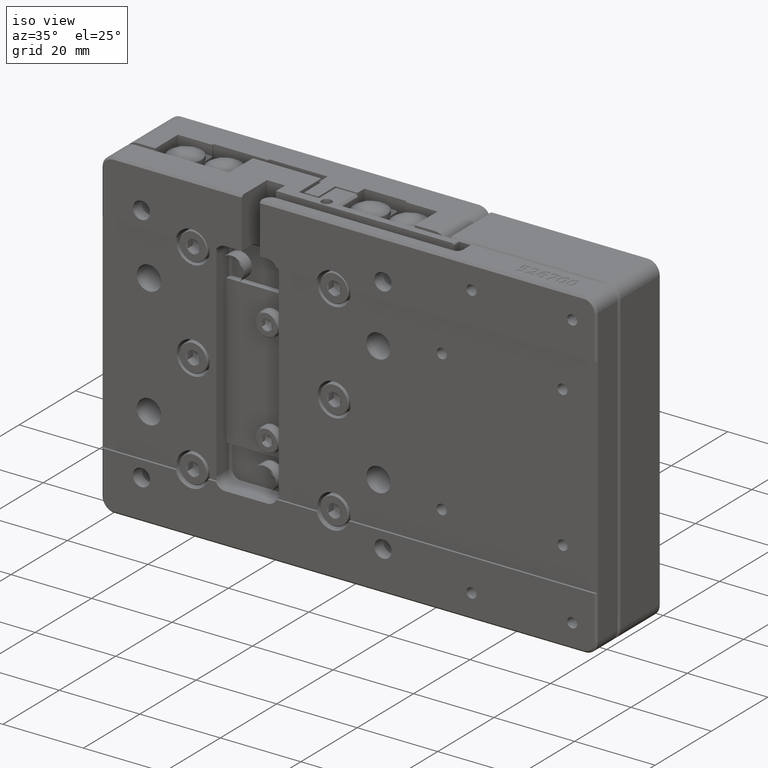
[diagram: clean part render]
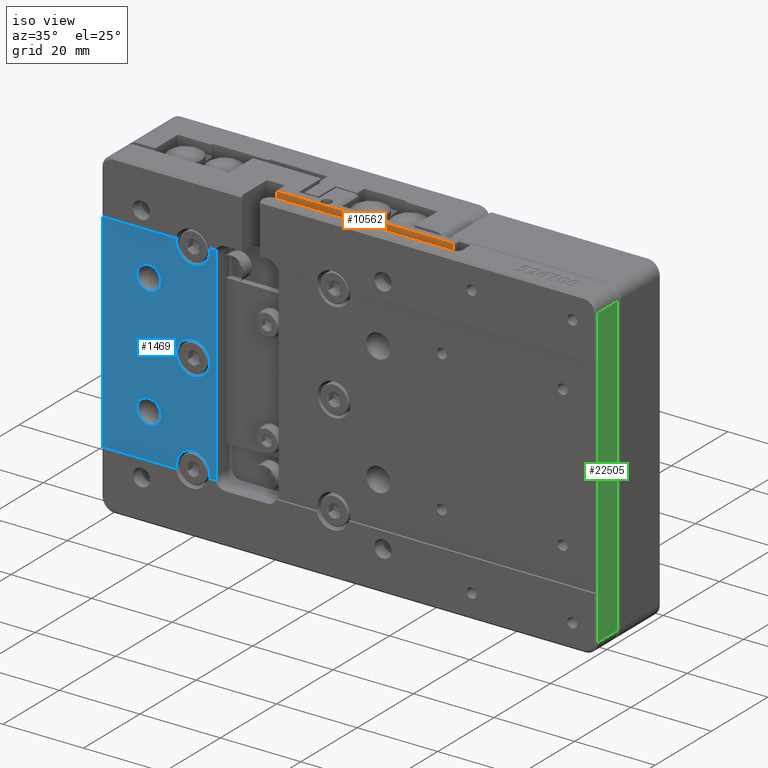
[diagram: same view with three faces highlighted in distinct colors, each labeled with its STEP entity id]
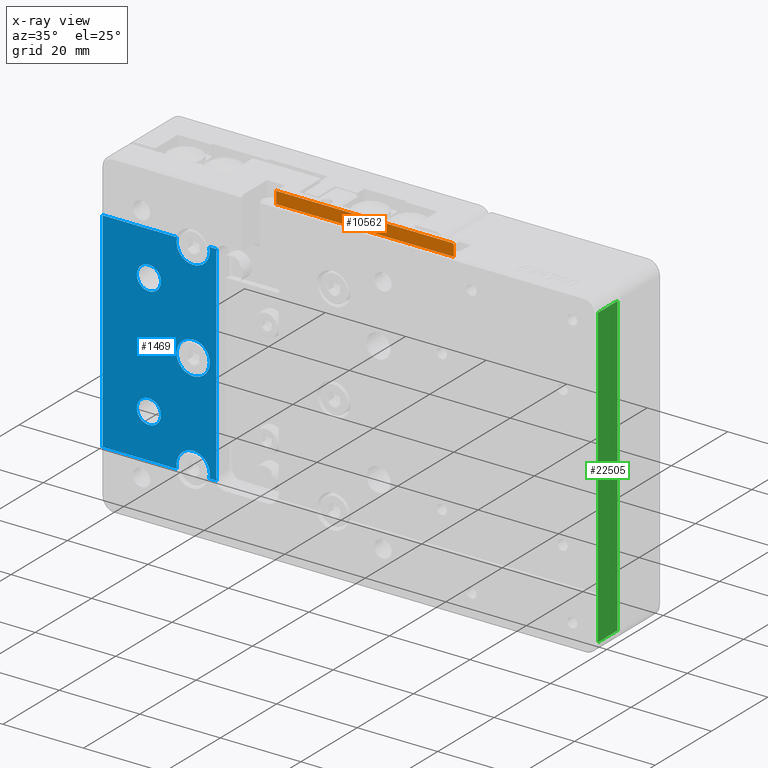
[diagram: x-ray of the same camera — body ghosted, the three highlighted faces saturated]
A machine part, iso view with three faces highlighted in distinct colors.
The next image is the same camera in x-ray (body ghosted, the three faces saturated) — at least one of them is partly hidden behind the body in this view.
Their STEP definitions:

[orange] entity #10562 — the highlighted planar face has unit normal (0, 1, -0).
#217 = LINE ( 'NONE', #63088, #12121 ) ;
#1885 = DIRECTION ( 'NONE',  ( 0.0000000000000000000, 0.0000000000000000000, -1.000000000000000000 ) ) ;
#2148 = CARTESIAN_POINT ( 'NONE',  ( 43.54999999999999700, -2.200000000000000600, 39.63089969389957200 ) ) ;
#2619 = ORIENTED_EDGE ( 'NONE', *, *, #38401, .T. ) ;
#2652 = DIRECTION ( 'NONE',  ( 1.000000000000000000, 0.0000000000000000000, -0.0000000000000000000 ) ) ;
#3568 = ORIENTED_EDGE ( 'NONE', *, *, #4617, .F. ) ;
#4617 = EDGE_CURVE ( 'NONE', #32132, #61576, #7474, .T. ) ;
#4696 = DIRECTION ( 'NONE',  ( -1.000000000000000000, 0.0000000000000000000, -0.0000000000000000000 ) ) ;
#4829 = CARTESIAN_POINT ( 'NONE',  ( 44.43300000000000700, -2.200000000000000200, 36.82281678783001400 ) ) ;
#7474 = LINE ( 'NONE', #60019, #20862 ) ;
#7734 = VERTEX_POINT ( 'NONE', #23912 ) ;
#8544 = CARTESIAN_POINT ( 'NONE',  ( 43.55000000000000400, -2.200000000000000200, 37.00000000000000000 ) ) ;
#9924 = DIRECTION ( 'NONE',  ( 0.0000000000000000000, 0.0000000000000000000, 1.000000000000000000 ) ) ;
#10312 = CARTESIAN_POINT ( 'NONE',  ( 43.05000000000000400, -2.200000000000000600, 40.00000000000000000 ) ) ;
#10562 = ADVANCED_FACE ( 'NONE', ( #58662 ), #65218, .F. ) ;
#12121 = VECTOR ( 'NONE', #2652, 1000.000000000000000 ) ;
#18306 = CARTESIAN_POINT ( 'NONE',  ( -0.6000000000000010900, -2.200000000000000600, 37.00000000000000000 ) ) ;
#20862 = VECTOR ( 'NONE', #4696, 1000.000000000000000 ) ;
#22242 = CARTESIAN_POINT ( 'NONE',  ( 43.18089969389957600, -2.200000000000000600, 39.99999999999998600 ) ) ;
#23698 = VERTEX_POINT ( 'NONE', #10312 ) ;
#23912 = CARTESIAN_POINT ( 'NONE',  ( 43.55000000000000400, -2.200000000000000600, 39.50000000000000000 ) ) ;
#27639 = VECTOR ( 'NONE', #63892, 1000.000000000000000 ) ;
#27876 = B_SPLINE_CURVE_WITH_KNOTS ( 'NONE', 3,
 ( #37238, #22242, #62583, #32351, #2148, #37451 ),
 .UNSPECIFIED., .F., .F.,
 ( 4, 2, 4 ),
 ( 0.0000000000000000000, 0.5000000000000000000, 1.000000000000000000 ),
 .UNSPECIFIED. ) ;
#32013 = VECTOR ( 'NONE', #1885, 1000.000000000000000 ) ;
#32132 = VERTEX_POINT ( 'NONE', #8544 ) ;
#32219 = AXIS2_PLACEMENT_3D ( 'NONE', #4829, #40091, #9924 ) ;
#32351 = CARTESIAN_POINT ( 'NONE',  ( 43.49611345180489500, -2.200000000000000600, 39.76099332938163400 ) ) ;
#33723 = CARTESIAN_POINT ( 'NONE',  ( -0.6000000000000022000, -2.200000000000000600, 40.00000000000000000 ) ) ;
#37238 = CARTESIAN_POINT ( 'NONE',  ( 43.05000000000000400, -2.200000000000000600, 40.00000000000000000 ) ) ;
#37451 = CARTESIAN_POINT ( 'NONE',  ( 43.55000000000000400, -2.200000000000000600, 39.50000000000000000 ) ) ;
#38310 = ORIENTED_EDGE ( 'NONE', *, *, #56716, .F. ) ;
#38401 = EDGE_CURVE ( 'NONE', #53543, #61576, #58846, .T. ) ;
#40091 = DIRECTION ( 'NONE',  ( 0.0000000000000000000, 1.000000000000000000, -0.0000000000000000000 ) ) ;
#41019 = LINE ( 'NONE', #48649, #27639 ) ;
#44303 = EDGE_CURVE ( 'NONE', #32132, #7734, #41019, .T. ) ;
#48649 = CARTESIAN_POINT ( 'NONE',  ( 43.54999999999999700, -2.200000000000000200, 34.82281678783000000 ) ) ;
#52145 = CARTESIAN_POINT ( 'NONE',  ( -0.6000000000000000900, -2.200000000000000600, 40.39000000000000800 ) ) ;
#53543 = VERTEX_POINT ( 'NONE', #33723 ) ;
#56238 = EDGE_CURVE ( 'NONE', #53543, #23698, #217, .T. ) ;
#56716 = EDGE_CURVE ( 'NONE', #23698, #7734, #27876, .T. ) ;
#58662 = FACE_OUTER_BOUND ( 'NONE', #59318, .T. ) ;
#58846 = LINE ( 'NONE', #52145, #32013 ) ;
#59318 = EDGE_LOOP ( 'NONE', ( #63086, #38310, #62709, #2619, #3568 ) ) ;
#60019 = CARTESIAN_POINT ( 'NONE',  ( 44.43300000000000700, -2.200000000000000200, 37.00000000000000000 ) ) ;
#61576 = VERTEX_POINT ( 'NONE', #18306 ) ;
#62583 = CARTESIAN_POINT ( 'NONE',  ( 43.31099332938165200, -2.200000000000001100, 39.94611345180491200 ) ) ;
#62709 = ORIENTED_EDGE ( 'NONE', *, *, #56238, .F. ) ;
#63086 = ORIENTED_EDGE ( 'NONE', *, *, #44303, .T. ) ;
#63088 = CARTESIAN_POINT ( 'NONE',  ( -39.34000000000000300, -2.200000000000000600, 40.00000000000000000 ) ) ;
#63892 = DIRECTION ( 'NONE',  ( 0.0000000000000000000, 0.0000000000000000000, 1.000000000000000000 ) ) ;
#65218 = PLANE ( 'NONE',  #32219 ) ;

[blue] entity #1469 — the highlighted planar face has unit normal (0, -1, 0).
#156 = VERTEX_POINT ( 'NONE', #29533 ) ;
#357 = VERTEX_POINT ( 'NONE', #21842 ) ;
#375 = CARTESIAN_POINT ( 'NONE',  ( -20.03556603869647600, -7.499999999999999100, -21.70183406767461800 ) ) ;
#418 = CARTESIAN_POINT ( 'NONE',  ( -26.65977780455867600, -7.500000000000000900, -12.59768389567649300 ) ) ;
#509 = CARTESIAN_POINT ( 'NONE',  ( -25.49999999999999600, -7.500000000000000000, 15.00000000000000000 ) ) ;
#536 = VECTOR ( 'NONE', #57372, 1000.000000000000000 ) ;
#610 = CARTESIAN_POINT ( 'NONE',  ( -13.37500000000000500, -7.500000000000000000, -24.99999999999998600 ) ) ;
#1007 = CARTESIAN_POINT ( 'NONE',  ( -13.37500000000000900, -7.500000000000000000, 25.00000000000000000 ) ) ;
#1093 = ORIENTED_EDGE ( 'NONE', *, *, #22315, .T. ) ;
#1118 = CARTESIAN_POINT ( 'NONE',  ( -25.49999999999999600, -7.500000000000000000, 15.00000000000000000 ) ) ;
#1129 = CARTESIAN_POINT ( 'NONE',  ( -21.62500000000000700, -7.500000000000000000, -25.00000000000000000 ) ) ;
#1469 = ADVANCED_FACE ( 'NONE', ( #51810, #65234, #13213, #39995 ), #59211, .T. ) ;
#1572 = CARTESIAN_POINT ( 'NONE',  ( -21.10457902883716100, -7.500000000000000900, 22.92326578997508300 ) ) ;
#1680 = VERTEX_POINT ( 'NONE', #25689 ) ;
#1937 = CARTESIAN_POINT ( 'NONE',  ( -28.49999999999999600, -7.500000000000000000, -11.99999999999999600 ) ) ;
#2062 = CARTESIAN_POINT ( 'NONE',  ( -18.58040410698862400, -7.500000000000000000, 4.017427114379594300 ) ) ;
#2580 = VERTEX_POINT ( 'NONE', #55287 ) ;
#2986 = CARTESIAN_POINT ( 'NONE',  ( -13.48257288561611700, -7.499999999999998200, -23.91959589302766200 ) ) ;
#3395 = CARTESIAN_POINT ( 'NONE',  ( -31.11939766255644100, -7.500000000000000900, -16.51540314972749400 ) ) ;
#3521 = EDGE_CURVE ( 'NONE', #36397, #64099, #16223, .T. ) ;
#3853 = CARTESIAN_POINT ( 'NONE',  ( -20.79816593232541100, -7.500000000000000000, -2.535566038696432000 ) ) ;
#3989 = CARTESIAN_POINT ( 'NONE',  ( -42.46000000000001500, -7.500000000000000000, 25.99999999999969800 ) ) ;
#4234 = CARTESIAN_POINT ( 'NONE',  ( -31.50000000000000000, -7.500000000000000000, -14.60236470912816600 ) ) ;
#4466 = CARTESIAN_POINT ( 'NONE',  ( -30.90231610432825000, -7.500000000000000900, -13.15977780456341200 ) ) ;
#4591 = CARTESIAN_POINT ( 'NONE',  ( -28.49999999999999600, -7.500000000000000000, -18.00000000000000700 ) ) ;
#4927 = CARTESIAN_POINT ( 'NONE',  ( -13.37500000000000900, -7.500000000000000000, -1.262917011620707000E-016 ) ) ;
#5039 = EDGE_CURVE ( 'NONE', #25792, #53730, #34417, .T. ) ;
#5337 = EDGE_CURVE ( 'NONE', #53124, #25442, #49567, .T. ) ;
#5480 = CARTESIAN_POINT ( 'NONE',  ( -18.58040410698712500, -7.500000000000000000, -20.98257288562080100 ) ) ;
#5526 = CARTESIAN_POINT ( 'NONE',  ( -25.88060233744355500, -7.500000000000000900, -13.48459685027560100 ) ) ;
#5737 = CARTESIAN_POINT ( 'NONE',  ( -31.50000000000000700, -7.500000000000004400, 15.39763529087438700 ) ) ;
#5967 = ORIENTED_EDGE ( 'NONE', *, *, #7853, .T. ) ;
#6025 = ORIENTED_EDGE ( 'NONE', *, *, #51915, .T. ) ;
#6230 = CARTESIAN_POINT ( 'NONE',  ( -25.50000000000000000, -7.500000000000000000, 14.60236470912200700 ) ) ;
#6391 = CARTESIAN_POINT ( 'NONE',  ( -13.89528897402241000, -7.500000000000000000, -2.076788885019245100 ) ) ;
#6534 = CARTESIAN_POINT ( 'NONE',  ( -13.37500000000000900, -7.500000000000000000, 25.00000000000000000 ) ) ;
#6695 = CARTESIAN_POINT ( 'NONE',  ( -21.62500000000001100, -7.500000000000000900, 24.45967693350028700 ) ) ;
#7101 = CARTESIAN_POINT ( 'NONE',  ( -28.49999999999999600, -7.500000000000000000, 11.99999999999999600 ) ) ;
#7171 = CARTESIAN_POINT ( 'NONE',  ( -17.50000000000000400, -7.500000000000000000, 4.124999999999996400 ) ) ;
#7616 = CARTESIAN_POINT ( 'NONE',  ( -31.50000000000000000, -7.500000000000000000, 15.00000000000000000 ) ) ;
#7693 = CARTESIAN_POINT ( 'NONE',  ( -25.49999999999999600, -7.500000000000000000, -15.00000000000000000 ) ) ;
#7839 = ORIENTED_EDGE ( 'NONE', *, *, #35696, .T. ) ;
#7853 = EDGE_CURVE ( 'NONE', #46680, #63582, #56190, .T. ) ;
#7969 = EDGE_CURVE ( 'NONE', #41758, #44536, #51554, .T. ) ;
#8094 = CARTESIAN_POINT ( 'NONE',  ( -13.37500000000000500, -7.500000000000000000, -24.99999999999998600 ) ) ;
#8498 = CARTESIAN_POINT ( 'NONE',  ( -31.50000000000000000, -7.500000000000000900, -15.39801401209795500 ) ) ;
#8833 = ORIENTED_EDGE ( 'NONE', *, *, #7969, .T. ) ;
#8939 = CARTESIAN_POINT ( 'NONE',  ( -21.51742711438096100, -7.499999999999999100, -1.080404106987072200 ) ) ;
#9155 = VERTEX_POINT ( 'NONE', #11741 ) ;
#9458 = CARTESIAN_POINT ( 'NONE',  ( -25.49999999999999600, -7.500000000000000000, -15.39763529088054900 ) ) ;
#9546 = CARTESIAN_POINT ( 'NONE',  ( -30.01540314973113200, -7.500000000000000900, -12.38060233744357700 ) ) ;
#9571 = VERTEX_POINT ( 'NONE', #33283 ) ;
#9618 = VERTEX_POINT ( 'NONE', #13244 ) ;
#9986 = EDGE_LOOP ( 'NONE', ( #63519, #56316, #10913, #17904, #47351, #10392, #38264, #35625, #18395, #7839, #8833, #49054, #6025, #1093, #24755, #15613 ) ) ;
#10357 = CARTESIAN_POINT ( 'NONE',  ( -21.62500000000000700, -7.500000000000000000, -25.00000000000000000 ) ) ;
#10370 = CARTESIAN_POINT ( 'NONE',  ( -13.37499999999999800, -7.500000000000000000, -25.33838021691178400 ) ) ;
#10392 = ORIENTED_EDGE ( 'NONE', *, *, #50516, .T. ) ;
#10481 = CARTESIAN_POINT ( 'NONE',  ( -28.49999999999999600, -7.500000000000000000, 18.00000000000000400 ) ) ;
#10580 = CARTESIAN_POINT ( 'NONE',  ( -17.50000000000000000, -7.500000000000000000, -20.87500000000000400 ) ) ;
#10620 = CARTESIAN_POINT ( 'NONE',  ( -25.50000000000000000, -7.500000000000000900, -14.60198598789894900 ) ) ;
#10661 = B_SPLINE_CURVE_WITH_KNOTS ( 'NONE', 3,
 ( #6534, #41786, #46853, #16713, #51904, #21776, #56989, #26826, #62098, #31855 ),
 .UNSPECIFIED., .F., .F.,
 ( 4, 2, 2, 2, 4 ),
 ( 0.0000000000000000000, 0.2499999999999998300, 0.4999999999999996700, 0.7499999999999995600, 1.000000000000000000 ),
 .UNSPECIFIED. ) ;
#10835 = CARTESIAN_POINT ( 'NONE',  ( -31.11960396959440100, -7.499999999999999100, 16.51528354497993300 ) ) ;
#10913 = ORIENTED_EDGE ( 'NONE', *, *, #52407, .T. ) ;
#11317 = CARTESIAN_POINT ( 'NONE',  ( -25.88039603040906300, -7.500000000000000000, 13.48471645501529500 ) ) ;
#11336 = CARTESIAN_POINT ( 'NONE',  ( -18.03959893496504900, -7.500000000000000000, 20.87500000000000400 ) ) ;
#11481 = CARTESIAN_POINT ( 'NONE',  ( -14.96443396130880100, -7.499999999999999100, -3.298165932328902500 ) ) ;
#11741 = CARTESIAN_POINT ( 'NONE',  ( -21.50195264839732800, -7.500000000000000000, 25.99999999999964100 ) ) ;
#12380 = B_SPLINE_CURVE_WITH_KNOTS ( 'NONE', 3,
 ( #16644, #11336, #56927, #26762, #62040, #31789, #1572, #36897, #6695, #41939 ),
 .UNSPECIFIED., .F., .F.,
 ( 4, 2, 2, 2, 4 ),
 ( 0.0000000000000000000, 0.2500000000000000000, 0.5000000000000000000, 0.7500000000000000000, 1.000000000000000000 ),
 .UNSPECIFIED. ) ;
#12559 = LINE ( 'NONE', #3989, #25966 ) ;
#12723 = CARTESIAN_POINT ( 'NONE',  ( -17.50000000000000000, -7.500000000000000000, -20.87500000000000400 ) ) ;
#13213 = FACE_BOUND ( 'NONE', #36091, .T. ) ;
#13244 = CARTESIAN_POINT ( 'NONE',  ( -17.50000000000000400, -7.500000000000000000, 20.87500000000000400 ) ) ;
#13520 = ORIENTED_EDGE ( 'NONE', *, *, #55762, .T. ) ;
#13830 = CARTESIAN_POINT ( 'NONE',  ( -11.75000000000001800, -7.500000000000000000, -25.34785358753607200 ) ) ;
#14014 = CARTESIAN_POINT ( 'NONE',  ( -21.62500000000000700, -7.500000000000000000, 3.788751034862121100E-016 ) ) ;
#14102 = B_SPLINE_CURVE_WITH_KNOTS ( 'NONE', 3,
 ( #44705, #9458, #19619, #54807, #24658, #59914, #29702, #64989, #34782, #4591 ),
 .UNSPECIFIED., .F., .F.,
 ( 4, 2, 2, 2, 4 ),
 ( 0.0000000000000000000, 0.2500000000000000000, 0.5000000000000000000, 0.7500000000000000000, 1.000000000000000000 ),
 .UNSPECIFIED. ) ;
#14614 = CARTESIAN_POINT ( 'NONE',  ( -28.89801401209434300, -7.500000000000000900, -11.99999999999999800 ) ) ;
#14686 = CARTESIAN_POINT ( 'NONE',  ( -30.01528354498250600, -7.500000000000000000, 12.38039603040751400 ) ) ;
#14832 = CARTESIAN_POINT ( 'NONE',  ( -42.46000000000001500, -7.500000000000000000, -26.00000000000000700 ) ) ;
#15053 = EDGE_LOOP ( 'NONE', ( #5967, #63217, #40270, #42937 ) ) ;
#15288 = B_SPLINE_CURVE_WITH_KNOTS ( 'NONE', 3,
 ( #35928, #5737, #40985, #10835, #46052, #15916, #51100, #20964, #56180, #26034 ),
 .UNSPECIFIED., .F., .F.,
 ( 4, 2, 2, 2, 4 ),
 ( 0.0000000000000000000, 0.2500000000000006100, 0.5000000000000004400, 0.7500000000000002200, 1.000000000000000000 ),
 .UNSPECIFIED. ) ;
#15574 = CARTESIAN_POINT ( 'NONE',  ( -27.71918295079108000, -7.500000000000000900, 17.92367322547370600 ) ) ;
#15613 = ORIENTED_EDGE ( 'NONE', *, *, #64205, .T. ) ;
#15692 = CARTESIAN_POINT ( 'NONE',  ( -13.37500000000000900, -7.500000000000000000, -1.262917011620707000E-016 ) ) ;
#15916 = CARTESIAN_POINT ( 'NONE',  ( -30.34032458279321900, -7.500000000000001800, 17.40241849168052500 ) ) ;
#16223 = B_SPLINE_CURVE_WITH_KNOTS ( 'NONE', 3,
 ( #30197, #50676, #25606, #30632, #418, #35713, #5526, #40783, #10620, #45848 ),
 .UNSPECIFIED., .F., .F.,
 ( 4, 2, 2, 2, 4 ),
 ( 0.0000000000000000000, 0.2500000000000000000, 0.5000000000000000000, 0.7500000000000000000, 1.000000000000000000 ),
 .UNSPECIFIED. ) ;
#16350 = CARTESIAN_POINT ( 'NONE',  ( -13.37500000000000400, -7.500000000000000000, -0.5395989349632526200 ) ) ;
#16411 = CARTESIAN_POINT ( 'NONE',  ( -26.65967541720876000, -7.499999999999999100, 12.59758150831876700 ) ) ;
#16450 = CARTESIAN_POINT ( 'NONE',  ( -42.46000000000001500, -7.500000000000000000, -26.00000000000000700 ) ) ;
#16558 = CARTESIAN_POINT ( 'NONE',  ( -16.41959589300643100, -7.500000000000000000, -4.017427114378256700 ) ) ;
#16644 = CARTESIAN_POINT ( 'NONE',  ( -17.50000000000000400, -7.500000000000000000, 20.87500000000000400 ) ) ;
#16713 = CARTESIAN_POINT ( 'NONE',  ( -13.89528897402163700, -7.499999999999999100, 22.92321111498190700 ) ) ;
#17185 = CARTESIAN_POINT ( 'NONE',  ( -25.49999999999999600, -7.500000000000000000, 15.00000000000000000 ) ) ;
#17337 = B_SPLINE_CURVE_WITH_KNOTS ( 'NONE', 3,
 ( #34716, #64920, #44851, #14686, #49877, #19759, #54958, #24820, #60071, #29845 ),
 .UNSPECIFIED., .F., .F.,
 ( 4, 2, 2, 2, 4 ),
 ( 0.0000000000000000000, 0.2500000000000000000, 0.5000000000000000000, 0.7500000000000000000, 1.000000000000000000 ),
 .UNSPECIFIED. ) ;
#17827 = CARTESIAN_POINT ( 'NONE',  ( -16.96040106503671300, -7.500000000000000900, -20.87500000000000400 ) ) ;
#17904 = ORIENTED_EDGE ( 'NONE', *, *, #5039, .T. ) ;
#18395 = ORIENTED_EDGE ( 'NONE', *, *, #29322, .T. ) ;
#18434 = CARTESIAN_POINT ( 'NONE',  ( -29.28081704920586500, -7.500000000000000900, -17.92367322547422900 ) ) ;
#18880 = CARTESIAN_POINT ( 'NONE',  ( -17.50000000000000400, -7.500000000000000000, -4.124999999999996400 ) ) ;
#18898 = CARTESIAN_POINT ( 'NONE',  ( -42.46000000000001500, -7.500000000000000000, 27.04000000000000300 ) ) ;
#19170 = VECTOR ( 'NONE', #59988, 1000.000000000000000 ) ;
#19619 = CARTESIAN_POINT ( 'NONE',  ( -25.57632677452140500, -7.500000000000000900, -15.78081704920402800 ) ) ;
#19711 = CARTESIAN_POINT ( 'NONE',  ( -31.50000000000000000, -7.500000000000000000, -14.99999999999999600 ) ) ;
#19759 = CARTESIAN_POINT ( 'NONE',  ( -30.90241849168058900, -7.499999999999999100, 13.15967541720750100 ) ) ;
#19949 = CARTESIAN_POINT ( 'NONE',  ( -16.41965056801875300, -7.500000000000000900, 4.017295117245269300 ) ) ;
#20194 = DIRECTION ( 'NONE',  ( 0.0000000000000000000, 0.0000000000000000000, 1.000000000000000000 ) ) ;
#20362 = CARTESIAN_POINT ( 'NONE',  ( -11.75000000000000000, -7.500000000000000000, 25.00000000000000400 ) ) ;
#20614 = CARTESIAN_POINT ( 'NONE',  ( -26.65977780456048100, -7.500000000000000900, 17.40231610432660100 ) ) ;
#20754 = B_SPLINE_CURVE_WITH_KNOTS ( 'NONE', 3,
 ( #15692, #16350, #36576, #6391, #41642, #11481, #46707, #16558, #51769, #21606 ),
 .UNSPECIFIED., .F., .F.,
 ( 4, 2, 2, 2, 4 ),
 ( 0.0000000000000000000, 0.2500000000000000000, 0.5000000000000000000, 0.7500000000000000000, 1.000000000000000000 ),
 .UNSPECIFIED. ) ;
#20784 = VERTEX_POINT ( 'NONE', #17185 ) ;
#20964 = CARTESIAN_POINT ( 'NONE',  ( -29.28069744446252900, -7.500000000000001800, 17.92387953251129700 ) ) ;
#21002 = CARTESIAN_POINT ( 'NONE',  ( -11.68042928249301600, -7.500000000000000000, 25.68118692086898500 ) ) ;
#21452 = CARTESIAN_POINT ( 'NONE',  ( -27.71930255553721900, -7.500000000000000000, 12.07612046748871000 ) ) ;
#21606 = CARTESIAN_POINT ( 'NONE',  ( -17.50000000000000400, -7.500000000000000000, -4.124999999999996400 ) ) ;
#21666 = B_SPLINE_CURVE_WITH_KNOTS ( 'NONE', 3,
 ( #10357, #50626, #25564, #60805, #30593, #375, #35671, #5480, #40744, #10580 ),
 .UNSPECIFIED., .F., .F.,
 ( 4, 2, 2, 2, 4 ),
 ( 0.0000000000000000000, 0.2500000000000000000, 0.5000000000000000000, 0.7500000000000000000, 1.000000000000000000 ),
 .UNSPECIFIED. ) ;
#21776 = CARTESIAN_POINT ( 'NONE',  ( -14.96443396130358900, -7.499999999999999100, 21.70183406767282700 ) ) ;
#21842 = CARTESIAN_POINT ( 'NONE',  ( -11.75000000000000000, -7.500000000000000000, 25.00000000000000400 ) ) ;
#21843 = EDGE_CURVE ( 'NONE', #20784, #63731, #31356, .T. ) ;
#21959 = CARTESIAN_POINT ( 'NONE',  ( -21.62500000000000700, -7.500000000000000000, 0.5395989349562490000 ) ) ;
#22077 = VERTEX_POINT ( 'NONE', #49127 ) ;
#22169 = CARTESIAN_POINT ( 'NONE',  ( -21.51729511724242600, -7.500000000000000900, 1.080349431989903600 ) ) ;
#22315 = EDGE_CURVE ( 'NONE', #60412, #38970, #46563, .T. ) ;
#22445 = AXIS2_PLACEMENT_3D ( 'NONE', #18898, #29008, #64278 ) ;
#22923 = CARTESIAN_POINT ( 'NONE',  ( -21.62500000000000700, -7.500000000000000000, 24.99999999999998600 ) ) ;
#23089 = CARTESIAN_POINT ( 'NONE',  ( -16.41965056801411600, -7.500000000000000000, -20.98270488275492000 ) ) ;
#23603 = CARTESIAN_POINT ( 'NONE',  ( -13.37500000000000500, -7.500000000000000000, 25.33838021690892400 ) ) ;
#24413 = CARTESIAN_POINT ( 'NONE',  ( -13.37500000000000500, -7.500000000000000000, -24.99999999999998600 ) ) ;
#24416 = B_SPLINE_CURVE_WITH_KNOTS ( 'NONE', 3,
 ( #10481, #30502, #15574, #50761, #20614, #55829, #25687, #60936, #30715, #509 ),
 .UNSPECIFIED., .F., .F.,
 ( 4, 2, 2, 2, 4 ),
 ( 0.0000000000000000000, 0.2500000000000000000, 0.5000000000000000000, 0.7500000000000000000, 1.000000000000000000 ),
 .UNSPECIFIED. ) ;
#24658 = CARTESIAN_POINT ( 'NONE',  ( -26.09768389567302500, -7.500000000000000900, -16.84022219543914600 ) ) ;
#24755 = ORIENTED_EDGE ( 'NONE', *, *, #41900, .T. ) ;
#24820 = CARTESIAN_POINT ( 'NONE',  ( -31.42387953251128600, -7.500000000000000000, 14.21930255553695200 ) ) ;
#25012 = CARTESIAN_POINT ( 'NONE',  ( -14.96453498753817800, -7.500000000000000900, 3.298064906092609900 ) ) ;
#25093 = EDGE_CURVE ( 'NONE', #1680, #357, #65225, .T. ) ;
#25442 = VERTEX_POINT ( 'NONE', #19711 ) ;
#25475 = LINE ( 'NONE', #62718, #37312 ) ;
#25564 = CARTESIAN_POINT ( 'NONE',  ( -21.51729511725363200, -7.500000000000000900, -23.91965056803127600 ) ) ;
#25606 = CARTESIAN_POINT ( 'NONE',  ( -27.71918295079108000, -7.500000000000000900, -12.07632677452502400 ) ) ;
#25687 = CARTESIAN_POINT ( 'NONE',  ( -25.88060233744356300, -7.500000000000000900, 16.51540314972567800 ) ) ;
#25689 = CARTESIAN_POINT ( 'NONE',  ( -11.75000000000000400, -7.500000000000000000, -25.00000000000000000 ) ) ;
#25792 = VERTEX_POINT ( 'NONE', #33090 ) ;
#25966 = VECTOR ( 'NONE', #39270, 1000.000000000000000 ) ;
#26034 = CARTESIAN_POINT ( 'NONE',  ( -28.49999999999999600, -7.500000000000000000, 18.00000000000000400 ) ) ;
#26191 = CARTESIAN_POINT ( 'NONE',  ( -28.49999999999999600, -7.500000000000000000, -18.00000000000000700 ) ) ;
#26533 = CARTESIAN_POINT ( 'NONE',  ( -28.49999999999999600, -7.500000000000000000, 11.99999999999999600 ) ) ;
#26762 = CARTESIAN_POINT ( 'NONE',  ( -19.57678888501930100, -7.500000000000000000, 21.39528897402069100 ) ) ;
#26826 = CARTESIAN_POINT ( 'NONE',  ( -16.41959589301450600, -7.500000000000000900, 20.98257288562014000 ) ) ;
#27013 = EDGE_CURVE ( 'NONE', #25442, #36397, #36449, .T. ) ;
#27208 = CARTESIAN_POINT ( 'NONE',  ( -42.46000000000001500, -7.500000000000000000, 25.99999999999980100 ) ) ;
#27233 = CARTESIAN_POINT ( 'NONE',  ( -20.79806490609089300, -7.500000000000000900, 2.535465012461835900 ) ) ;
#27673 = VERTEX_POINT ( 'NONE', #7616 ) ;
#27967 = CARTESIAN_POINT ( 'NONE',  ( -21.58398421613263100, -7.500000000000000000, 25.67171355024212400 ) ) ;
#28139 = CARTESIAN_POINT ( 'NONE',  ( -14.96453498753816500, -7.500000000000000900, -21.70193509390740900 ) ) ;
#28536 = CARTESIAN_POINT ( 'NONE',  ( -30.01528354498467300, -7.500000000000000000, -17.61960396959349100 ) ) ;
#28666 = CARTESIAN_POINT ( 'NONE',  ( -13.37500000000000900, -7.500000000000000000, 25.00000000000000000 ) ) ;
#28988 = CARTESIAN_POINT ( 'NONE',  ( -18.58034943197903400, -7.500000000000000900, -4.017295117247926800 ) ) ;
#29008 = DIRECTION ( 'NONE',  ( 0.0000000000000000000, -1.000000000000000000, 0.0000000000000000000 ) ) ;
#29322 = EDGE_CURVE ( 'NONE', #37849, #22077, #25475, .T. ) ;
#29533 = CARTESIAN_POINT ( 'NONE',  ( -28.49999999999999600, -7.500000000000000000, 18.00000000000000400 ) ) ;
#29702 = CARTESIAN_POINT ( 'NONE',  ( -26.98459685027377500, -7.500000000000000900, -17.61939766255643000 ) ) ;
#29794 = CARTESIAN_POINT ( 'NONE',  ( -13.49804735160404300, -7.500000000000000000, -25.99999999999960200 ) ) ;
#29845 = CARTESIAN_POINT ( 'NONE',  ( -31.50000000000000000, -7.500000000000000000, 15.00000000000000000 ) ) ;
#30044 = CARTESIAN_POINT ( 'NONE',  ( -13.89542097115948000, -7.500000000000000900, 2.076734210016795100 ) ) ;
#30197 = CARTESIAN_POINT ( 'NONE',  ( -28.49999999999999600, -7.500000000000000000, -11.99999999999999600 ) ) ;
#30502 = CARTESIAN_POINT ( 'NONE',  ( -28.10236470912638000, -7.500000000000000000, 18.00000000000000400 ) ) ;
#30593 = CARTESIAN_POINT ( 'NONE',  ( -20.79806490609254500, -7.500000000000000900, -22.46453498753636800 ) ) ;
#30632 = CARTESIAN_POINT ( 'NONE',  ( -26.98471645501838600, -7.500000000000000000, -12.38039603040726400 ) ) ;
#30657 = EDGE_CURVE ( 'NONE', #31948, #46680, #48744, .T. ) ;
#30715 = CARTESIAN_POINT ( 'NONE',  ( -25.50000000000000000, -7.500000000000000900, 15.39801401209977300 ) ) ;
#31122 = CARTESIAN_POINT ( 'NONE',  ( -21.62500000000000700, -7.500000000000000000, -25.33838021691180500 ) ) ;
#31356 = B_SPLINE_CURVE_WITH_KNOTS ( 'NONE', 3,
 ( #1118, #6230, #41494, #11317, #46545, #16411, #51601, #21452, #56688, #26533 ),
 .UNSPECIFIED., .F., .F.,
 ( 4, 2, 2, 2, 4 ),
 ( 0.0000000000000000000, 0.2500000000000000000, 0.5000000000000000000, 0.7500000000000000000, 1.000000000000000000 ),
 .UNSPECIFIED. ) ;
#31789 = CARTESIAN_POINT ( 'NONE',  ( -20.79816593232540700, -7.499999999999999100, 22.46443396130355900 ) ) ;
#31855 = CARTESIAN_POINT ( 'NONE',  ( -17.50000000000000400, -7.500000000000000000, 20.87500000000000400 ) ) ;
#31948 = VERTEX_POINT ( 'NONE', #47112 ) ;
#32192 = B_SPLINE_CURVE_WITH_KNOTS ( 'NONE', 3,
 ( #22923, #53059, #27967, #63246 ),
 .UNSPECIFIED., .F., .F.,
 ( 4, 4 ),
 ( 0.0000000000000000000, 1.000000000000000000 ),
 .UNSPECIFIED. ) ;
#32273 = CARTESIAN_POINT ( 'NONE',  ( -19.57673421002336800, -7.500000000000000900, 3.604579028838517600 ) ) ;
#33090 = CARTESIAN_POINT ( 'NONE',  ( -13.49804735160321400, -7.500000000000000000, 25.99999999999943900 ) ) ;
#33206 = CARTESIAN_POINT ( 'NONE',  ( -13.89542097116578000, -7.500000000000000900, -22.92326578996036400 ) ) ;
#33283 = CARTESIAN_POINT ( 'NONE',  ( -11.54128784747883100, -7.500000000000000000, 25.99999999999975500 ) ) ;
#33625 = CARTESIAN_POINT ( 'NONE',  ( -30.90241849168284800, -7.499999999999999100, -16.84032458278704100 ) ) ;
#34062 = CARTESIAN_POINT ( 'NONE',  ( -20.03546501246359700, -7.499999999999999100, -3.298064906092577500 ) ) ;
#34134 = CARTESIAN_POINT ( 'NONE',  ( -40.00000000000033400, -7.500000000000334800, 25.99999999999989000 ) ) ;
#34417 = B_SPLINE_CURVE_WITH_KNOTS ( 'NONE', 3,
 ( #58864, #53770, #23603, #28666 ),
 .UNSPECIFIED., .F., .F.,
 ( 4, 4 ),
 ( 0.0000000000000000000, 1.000000000000000000 ),
 .UNSPECIFIED. ) ;
#34421 = CARTESIAN_POINT ( 'NONE',  ( -21.62500000000000700, -7.500000000000000000, 24.99999999999998600 ) ) ;
#34653 = CARTESIAN_POINT ( 'NONE',  ( -31.11960396959620900, -7.500000000000000000, -13.48471645502185900 ) ) ;
#34716 = CARTESIAN_POINT ( 'NONE',  ( -28.49999999999999600, -7.500000000000000000, 11.99999999999999600 ) ) ;
#34782 = CARTESIAN_POINT ( 'NONE',  ( -28.10198598790077200, -7.500000000000000900, -18.00000000000001400 ) ) ;
#35118 = CARTESIAN_POINT ( 'NONE',  ( -13.37500000000000500, -7.500000000000000900, 0.5403230665085117000 ) ) ;
#35339 = EDGE_LOOP ( 'NONE', ( #53755, #47726, #54658, #53060 ) ) ;
#35625 = ORIENTED_EDGE ( 'NONE', *, *, #35986, .T. ) ;
#35671 = CARTESIAN_POINT ( 'NONE',  ( -19.57673421002487000, -7.500000000000000900, -21.39542097116109800 ) ) ;
#35696 = EDGE_CURVE ( 'NONE', #22077, #41758, #38611, .T. ) ;
#35703 = LINE ( 'NONE', #14832, #19170 ) ;
#35713 = CARTESIAN_POINT ( 'NONE',  ( -26.09758150832204400, -7.499999999999999100, -13.15967541720422000 ) ) ;
#35901 = CARTESIAN_POINT ( 'NONE',  ( -13.49804735160404300, -7.500000000000000000, -25.99999999999960200 ) ) ;
#35928 = CARTESIAN_POINT ( 'NONE',  ( -31.50000000000000000, -7.500000000000000000, 15.00000000000000000 ) ) ;
#35986 = EDGE_CURVE ( 'NONE', #9155, #37849, #12559, .T. ) ;
#36042 = LINE ( 'NONE', #27208, #536 ) ;
#36091 = EDGE_LOOP ( 'NONE', ( #13520, #46684, #36140, #63987 ) ) ;
#36140 = ORIENTED_EDGE ( 'NONE', *, *, #41410, .T. ) ;
#36397 = VERTEX_POINT ( 'NONE', #1937 ) ;
#36449 = B_SPLINE_CURVE_WITH_KNOTS ( 'NONE', 3,
 ( #59791, #4234, #64862, #34653, #4466, #39724, #9546, #44784, #14614, #49805 ),
 .UNSPECIFIED., .F., .F.,
 ( 4, 2, 2, 2, 4 ),
 ( 0.0000000000000000000, 0.2500000000000000000, 0.5000000000000000000, 0.7500000000000000000, 1.000000000000000000 ),
 .UNSPECIFIED. ) ;
#36576 = CARTESIAN_POINT ( 'NONE',  ( -13.48270488275949600, -7.500000000000000900, -1.080349431992752200 ) ) ;
#36858 = CARTESIAN_POINT ( 'NONE',  ( -13.37500000000000900, -7.500000000000000000, -1.262917011620707000E-016 ) ) ;
#36897 = CARTESIAN_POINT ( 'NONE',  ( -21.51742711438096800, -7.500000000000000000, 23.91959589301293900 ) ) ;
#37312 = VECTOR ( 'NONE', #48095, 1000.000000000000000 ) ;
#37372 = CARTESIAN_POINT ( 'NONE',  ( -18.04032306650504600, -7.500000000000000900, 4.124999999999997300 ) ) ;
#37849 = VERTEX_POINT ( 'NONE', #34134 ) ;
#38264 = ORIENTED_EDGE ( 'NONE', *, *, #65055, .T. ) ;
#38286 = CARTESIAN_POINT ( 'NONE',  ( -13.37499999999999500, -7.499999999999998200, -24.45967693350030500 ) ) ;
#38611 = LINE ( 'NONE', #16450, #63852 ) ;
#38688 = CARTESIAN_POINT ( 'NONE',  ( -31.42387953251128600, -7.500000000000000000, -15.78069744446304900 ) ) ;
#38947 = CARTESIAN_POINT ( 'NONE',  ( -11.54128784747828500, -7.500000000000000000, -25.99999999999962000 ) ) ;
#38970 = VERTEX_POINT ( 'NONE', #29794 ) ;
#39133 = CARTESIAN_POINT ( 'NONE',  ( -21.10457902883716800, -7.500000000000000900, -2.076734210024918000 ) ) ;
#39270 = DIRECTION ( 'NONE',  ( -1.000000000000000000, -0.0000000000000000000, -0.0000000000000000000 ) ) ;
#39724 = CARTESIAN_POINT ( 'NONE',  ( -30.34032458279104500, -7.499999999999999100, -12.59758150831730600 ) ) ;
#39982 = CARTESIAN_POINT ( 'NONE',  ( -17.50000000000000400, -7.500000000000000000, 4.124999999999996400 ) ) ;
#39995 = FACE_BOUND ( 'NONE', #35339, .T. ) ;
#40270 = ORIENTED_EDGE ( 'NONE', *, *, #50259, .T. ) ;
#40744 = CARTESIAN_POINT ( 'NONE',  ( -18.04032306650854200, -7.500000000000000900, -20.87500000000000700 ) ) ;
#40783 = CARTESIAN_POINT ( 'NONE',  ( -25.57612046748871000, -7.500000000000000000, -14.21930255553385800 ) ) ;
#40985 = CARTESIAN_POINT ( 'NONE',  ( -31.42367322547333300, -7.500000000000000900, 15.78081704921058700 ) ) ;
#41410 = EDGE_CURVE ( 'NONE', #156, #20784, #24416, .T. ) ;
#41494 = CARTESIAN_POINT ( 'NONE',  ( -25.57632677452322100, -7.500000000000000900, 14.21918295079416300 ) ) ;
#41642 = CARTESIAN_POINT ( 'NONE',  ( -14.20193509390221100, -7.500000000000000900, -2.535465012460114600 ) ) ;
#41758 = VERTEX_POINT ( 'NONE', #53600 ) ;
#41786 = CARTESIAN_POINT ( 'NONE',  ( -13.37500000000000400, -7.500000000000000900, 24.46040106503325600 ) ) ;
#41900 = EDGE_CURVE ( 'NONE', #38970, #45901, #35703, .T. ) ;
#41939 = CARTESIAN_POINT ( 'NONE',  ( -21.62500000000000700, -7.500000000000000000, 24.99999999999998600 ) ) ;
#42937 = ORIENTED_EDGE ( 'NONE', *, *, #30657, .T. ) ;
#43734 = CARTESIAN_POINT ( 'NONE',  ( -31.50000000000000000, -7.500000000000000000, -14.99999999999999600 ) ) ;
#43795 = EDGE_CURVE ( 'NONE', #357, #9571, #59569, .T. ) ;
#44003 = CARTESIAN_POINT ( 'NONE',  ( -11.68042928249288800, -7.500000000000000000, -25.68118692086928000 ) ) ;
#44190 = CARTESIAN_POINT ( 'NONE',  ( -21.62500000000000700, -7.500000000000000000, -0.5403230664997404900 ) ) ;
#44536 = VERTEX_POINT ( 'NONE', #45323 ) ;
#44705 = CARTESIAN_POINT ( 'NONE',  ( -25.49999999999999600, -7.500000000000000000, -15.00000000000000000 ) ) ;
#44784 = CARTESIAN_POINT ( 'NONE',  ( -29.28069744445943800, -7.500000000000000000, -12.07612046748871000 ) ) ;
#44851 = CARTESIAN_POINT ( 'NONE',  ( -29.28081704920803900, -7.500000000000000900, 12.07632677452475700 ) ) ;
#45323 = CARTESIAN_POINT ( 'NONE',  ( -21.62500000000000700, -7.500000000000000000, -25.00000000000000000 ) ) ;
#45461 = CARTESIAN_POINT ( 'NONE',  ( -11.75000000000000000, -7.500000000000000000, 25.34785358753571700 ) ) ;
#45465 = CARTESIAN_POINT ( 'NONE',  ( -17.50000000000000000, -7.500000000000000000, -20.87500000000000400 ) ) ;
#45848 = CARTESIAN_POINT ( 'NONE',  ( -25.49999999999999600, -7.500000000000000000, -15.00000000000000000 ) ) ;
#45901 = VERTEX_POINT ( 'NONE', #50159 ) ;
#46052 = CARTESIAN_POINT ( 'NONE',  ( -30.90231610432607900, -7.500000000000000900, 16.84022219543876600 ) ) ;
#46545 = CARTESIAN_POINT ( 'NONE',  ( -26.09768389567193500, -7.500000000000000900, 13.15977780456195000 ) ) ;
#46563 = B_SPLINE_CURVE_WITH_KNOTS ( 'NONE', 3,
 ( #610, #10370, #60818, #35901 ),
 .UNSPECIFIED., .F., .F.,
 ( 4, 4 ),
 ( 0.0000000000000000000, 1.000000000000000000 ),
 .UNSPECIFIED. ) ;
#46680 = VERTEX_POINT ( 'NONE', #52735 ) ;
#46684 = ORIENTED_EDGE ( 'NONE', *, *, #61326, .T. ) ;
#46707 = CARTESIAN_POINT ( 'NONE',  ( -15.42326578998160100, -7.500000000000000900, -3.604579028839854300 ) ) ;
#46853 = CARTESIAN_POINT ( 'NONE',  ( -13.48270488276027600, -7.500000000000001800, 23.91965056800610900 ) ) ;
#46907 = EDGE_CURVE ( 'NONE', #63582, #2580, #20754, .T. ) ;
#46975 = B_SPLINE_CURVE_WITH_KNOTS ( 'NONE', 3,
 ( #38947, #44003, #13830, #49041 ),
 .UNSPECIFIED., .F., .F.,
 ( 4, 4 ),
 ( 0.0000000000000000000, 1.000000000000000000 ),
 .UNSPECIFIED. ) ;
#47112 = CARTESIAN_POINT ( 'NONE',  ( -21.62500000000000700, -7.500000000000000000, 3.788751034862121100E-016 ) ) ;
#47246 = CARTESIAN_POINT ( 'NONE',  ( -21.62500000000000700, -7.500000000000000000, 3.788751034862121100E-016 ) ) ;
#47351 = ORIENTED_EDGE ( 'NONE', *, *, #61943, .T. ) ;
#47726 = ORIENTED_EDGE ( 'NONE', *, *, #27013, .T. ) ;
#48095 = DIRECTION ( 'NONE',  ( 0.0000000000000000000, -0.0000000000000000000, -1.000000000000000000 ) ) ;
#48243 = B_SPLINE_CURVE_WITH_KNOTS ( 'NONE', 3,
 ( #12723, #17827, #23089, #58326, #28139, #63413, #33206, #2986, #38286, #8094 ),
 .UNSPECIFIED., .F., .F.,
 ( 4, 2, 2, 2, 4 ),
 ( 0.0000000000000000000, 0.2499999999999995000, 0.4999999999999996700, 0.7499999999999997800, 1.000000000000000000 ),
 .UNSPECIFIED. ) ;
#48744 = B_SPLINE_CURVE_WITH_KNOTS ( 'NONE', 3,
 ( #47246, #21959, #22169, #57389, #27233, #62504, #32273, #2062, #37372, #7171 ),
 .UNSPECIFIED., .F., .F.,
 ( 4, 2, 2, 2, 4 ),
 ( 0.0000000000000000000, 0.2500000000000000000, 0.5000000000000000000, 0.7500000000000000000, 1.000000000000000000 ),
 .UNSPECIFIED. ) ;
#49011 = CARTESIAN_POINT ( 'NONE',  ( -18.03959893496505600, -7.500000000000000900, -4.124999999999996400 ) ) ;
#49041 = CARTESIAN_POINT ( 'NONE',  ( -11.75000000000000400, -7.500000000000000000, -25.00000000000000000 ) ) ;
#49054 = ORIENTED_EDGE ( 'NONE', *, *, #63936, .T. ) ;
#49127 = CARTESIAN_POINT ( 'NONE',  ( -40.00000000000066800, -7.500000000001001000, -26.00000000000000400 ) ) ;
#49567 = B_SPLINE_CURVE_WITH_KNOTS ( 'NONE', 3,
 ( #58731, #53641, #18434, #28536, #63823, #33625, #3395, #38688, #8498, #43734 ),
 .UNSPECIFIED., .F., .F.,
 ( 4, 2, 2, 2, 4 ),
 ( 0.0000000000000000000, 0.2500000000000000000, 0.5000000000000000000, 0.7500000000000000000, 1.000000000000000000 ),
 .UNSPECIFIED. ) ;
#49805 = CARTESIAN_POINT ( 'NONE',  ( -28.49999999999999600, -7.500000000000000000, -11.99999999999999600 ) ) ;
#49877 = CARTESIAN_POINT ( 'NONE',  ( -30.34022219543867700, -7.500000000000000900, 12.59768389567321200 ) ) ;
#50069 = CARTESIAN_POINT ( 'NONE',  ( -16.96040106503671300, -7.500000000000000000, 4.124999999999995600 ) ) ;
#50159 = CARTESIAN_POINT ( 'NONE',  ( -11.54128784747828500, -7.500000000000000000, -25.99999999999962000 ) ) ;
#50198 = VECTOR ( 'NONE', #20194, 1000.000000000000000 ) ;
#50259 = EDGE_CURVE ( 'NONE', #2580, #31948, #62633, .T. ) ;
#50516 = EDGE_CURVE ( 'NONE', #9618, #50804, #12380, .T. ) ;
#50626 = CARTESIAN_POINT ( 'NONE',  ( -21.62500000000001400, -7.500000000000000000, -24.46040106504202100 ) ) ;
#50676 = CARTESIAN_POINT ( 'NONE',  ( -28.10236470912329000, -7.500000000000000000, -11.99999999999999500 ) ) ;
#50761 = CARTESIAN_POINT ( 'NONE',  ( -26.98471645501837900, -7.500000000000000000, 17.61960396959401700 ) ) ;
#50804 = VERTEX_POINT ( 'NONE', #34421 ) ;
#51100 = CARTESIAN_POINT ( 'NONE',  ( -30.01540314972803400, -7.500000000000000900, 17.61939766255643000 ) ) ;
#51554 = B_SPLINE_CURVE_WITH_KNOTS ( 'NONE', 3,
 ( #61572, #56485, #31122, #1129 ),
 .UNSPECIFIED., .F., .F.,
 ( 4, 4 ),
 ( 0.0000000000000000000, 1.000000000000000000 ),
 .UNSPECIFIED. ) ;
#51601 = CARTESIAN_POINT ( 'NONE',  ( -26.98459685027224400, -7.500000000000000900, 12.38060233744356600 ) ) ;
#51648 = DIRECTION ( 'NONE',  ( 1.000000000000000000, -0.0000000000000000000, 0.0000000000000000000 ) ) ;
#51769 = CARTESIAN_POINT ( 'NONE',  ( -16.95967693349322000, -7.500000000000000900, -4.124999999999997300 ) ) ;
#51810 = FACE_OUTER_BOUND ( 'NONE', #9986, .T. ) ;
#51904 = CARTESIAN_POINT ( 'NONE',  ( -14.20193509390741400, -7.500000000000000900, 22.46453498753815500 ) ) ;
#51915 = EDGE_CURVE ( 'NONE', #56080, #60412, #48243, .T. ) ;
#52407 = EDGE_CURVE ( 'NONE', #9571, #25792, #36042, .T. ) ;
#52735 = CARTESIAN_POINT ( 'NONE',  ( -17.50000000000000400, -7.500000000000000000, 4.124999999999996400 ) ) ;
#53059 = CARTESIAN_POINT ( 'NONE',  ( -21.62500000000001100, -7.500000000000000000, 25.33838021690888800 ) ) ;
#53060 = ORIENTED_EDGE ( 'NONE', *, *, #53617, .T. ) ;
#53124 = VERTEX_POINT ( 'NONE', #26191 ) ;
#53600 = CARTESIAN_POINT ( 'NONE',  ( -21.50195264839573600, -7.500000000000000000, -25.99999999999944600 ) ) ;
#53617 = EDGE_CURVE ( 'NONE', #64099, #53124, #14102, .T. ) ;
#53641 = CARTESIAN_POINT ( 'NONE',  ( -28.89763529087180100, -7.500000000000000000, -18.00000000000000700 ) ) ;
#53730 = VERTEX_POINT ( 'NONE', #1007 ) ;
#53755 = ORIENTED_EDGE ( 'NONE', *, *, #5337, .T. ) ;
#53770 = CARTESIAN_POINT ( 'NONE',  ( -13.41601578386738900, -7.500000000000000000, 25.67171355024216000 ) ) ;
#54658 = ORIENTED_EDGE ( 'NONE', *, *, #3521, .T. ) ;
#54807 = CARTESIAN_POINT ( 'NONE',  ( -25.88039603041087800, -7.500000000000000000, -16.51528354498650600 ) ) ;
#54958 = CARTESIAN_POINT ( 'NONE',  ( -31.11939766255643700, -7.500000000000000900, 13.48459685027250800 ) ) ;
#55138 = CARTESIAN_POINT ( 'NONE',  ( -15.42321111496927500, -7.500000000000000000, 3.604711025972842100 ) ) ;
#55287 = CARTESIAN_POINT ( 'NONE',  ( -17.50000000000000400, -7.500000000000000000, -4.124999999999996400 ) ) ;
#55762 = EDGE_CURVE ( 'NONE', #63731, #27673, #17337, .T. ) ;
#55829 = CARTESIAN_POINT ( 'NONE',  ( -26.09758150832023900, -7.499999999999999100, 16.84032458279269300 ) ) ;
#56080 = VERTEX_POINT ( 'NONE', #45465 ) ;
#56180 = CARTESIAN_POINT ( 'NONE',  ( -28.89801401209742700, -7.500000000000001800, 18.00000000000001100 ) ) ;
#56190 = B_SPLINE_CURVE_WITH_KNOTS ( 'NONE', 3,
 ( #39982, #50069, #19949, #55138, #25012, #60251, #30044, #65316, #35118, #4927 ),
 .UNSPECIFIED., .F., .F.,
 ( 4, 2, 2, 2, 4 ),
 ( 0.0000000000000000000, 0.2500000000000000000, 0.5000000000000000000, 0.7500000000000000000, 1.000000000000000000 ),
 .UNSPECIFIED. ) ;
#56226 = CARTESIAN_POINT ( 'NONE',  ( -11.54128784747883100, -7.500000000000000000, 25.99999999999975500 ) ) ;
#56316 = ORIENTED_EDGE ( 'NONE', *, *, #43795, .T. ) ;
#56485 = CARTESIAN_POINT ( 'NONE',  ( -21.58398421613191700, -7.500000000000000000, -25.67171355024495200 ) ) ;
#56688 = CARTESIAN_POINT ( 'NONE',  ( -28.10198598790230300, -7.500000000000000900, 11.99999999999999600 ) ) ;
#56927 = CARTESIAN_POINT ( 'NONE',  ( -18.58034943199271200, -7.500000000000000900, 20.98270488276120500 ) ) ;
#56989 = CARTESIAN_POINT ( 'NONE',  ( -15.42326578997352900, -7.500000000000000900, 21.39542097116176200 ) ) ;
#57372 = DIRECTION ( 'NONE',  ( -1.000000000000000000, -0.0000000000000000000, -0.0000000000000000000 ) ) ;
#57389 = CARTESIAN_POINT ( 'NONE',  ( -21.10471102597570700, -7.500000000000000000, 2.076788885022085500 ) ) ;
#58326 = CARTESIAN_POINT ( 'NONE',  ( -15.42321111497390300, -7.499999999999998200, -21.39528897402697900 ) ) ;
#58731 = CARTESIAN_POINT ( 'NONE',  ( -28.49999999999999600, -7.500000000000000000, -18.00000000000000700 ) ) ;
#58864 = CARTESIAN_POINT ( 'NONE',  ( -13.49804735160321400, -7.500000000000000000, 25.99999999999943900 ) ) ;
#59211 = PLANE ( 'NONE',  #22445 ) ;
#59569 = B_SPLINE_CURVE_WITH_KNOTS ( 'NONE', 3,
 ( #20362, #45461, #21002, #56226 ),
 .UNSPECIFIED., .F., .F.,
 ( 4, 4 ),
 ( 0.0000000000000000000, 1.000000000000000000 ),
 .UNSPECIFIED. ) ;
#59791 = CARTESIAN_POINT ( 'NONE',  ( -31.50000000000000000, -7.500000000000000000, -14.99999999999999600 ) ) ;
#59914 = CARTESIAN_POINT ( 'NONE',  ( -26.65967541720767600, -7.499999999999999100, -17.40241849168014100 ) ) ;
#59988 = DIRECTION ( 'NONE',  ( 1.000000000000000000, -0.0000000000000000000, 0.0000000000000000000 ) ) ;
#60071 = CARTESIAN_POINT ( 'NONE',  ( -31.50000000000000000, -7.500000000000000900, 14.60198598790204000 ) ) ;
#60251 = CARTESIAN_POINT ( 'NONE',  ( -14.20183406767282700, -7.499999999999999100, 2.535566038696400100 ) ) ;
#60412 = VERTEX_POINT ( 'NONE', #24413 ) ;
#60805 = CARTESIAN_POINT ( 'NONE',  ( -21.10471102596448700, -7.500000000000000000, -22.92321111495675000 ) ) ;
#60818 = CARTESIAN_POINT ( 'NONE',  ( -13.41601578386808500, -7.500000000000000000, -25.67171355024493500 ) ) ;
#60936 = CARTESIAN_POINT ( 'NONE',  ( -25.57612046748871000, -7.500000000000000000, 15.78069744446486300 ) ) ;
#61326 = EDGE_CURVE ( 'NONE', #27673, #156, #15288, .T. ) ;
#61572 = CARTESIAN_POINT ( 'NONE',  ( -21.50195264839573600, -7.500000000000000000, -25.99999999999944600 ) ) ;
#61943 = EDGE_CURVE ( 'NONE', #53730, #9618, #10661, .T. ) ;
#62040 = CARTESIAN_POINT ( 'NONE',  ( -20.03546501246361400, -7.500000000000000900, 21.70193509390743700 ) ) ;
#62098 = CARTESIAN_POINT ( 'NONE',  ( -16.95967693349322000, -7.500000000000000000, 20.87500000000000400 ) ) ;
#62504 = CARTESIAN_POINT ( 'NONE',  ( -20.03556603869813600, -7.499999999999999100, 3.298165932327181700 ) ) ;
#62633 = B_SPLINE_CURVE_WITH_KNOTS ( 'NONE', 3,
 ( #18880, #49011, #28988, #64252, #34062, #3853, #39133, #8939, #44190, #14014 ),
 .UNSPECIFIED., .F., .F.,
 ( 4, 2, 2, 2, 4 ),
 ( 0.0000000000000000000, 0.2500000000000001100, 0.5000000000000001100, 0.7500000000000001100, 1.000000000000000000 ),
 .UNSPECIFIED. ) ;
#62718 = CARTESIAN_POINT ( 'NONE',  ( -40.00000000000000000, -7.500000000000000000, 27.04000000000000300 ) ) ;
#63217 = ORIENTED_EDGE ( 'NONE', *, *, #46907, .T. ) ;
#63246 = CARTESIAN_POINT ( 'NONE',  ( -21.50195264839732800, -7.500000000000000000, 25.99999999999964100 ) ) ;
#63413 = CARTESIAN_POINT ( 'NONE',  ( -14.20183406767284000, -7.500000000000001800, -22.46443396130360200 ) ) ;
#63519 = ORIENTED_EDGE ( 'NONE', *, *, #25093, .T. ) ;
#63582 = VERTEX_POINT ( 'NONE', #36858 ) ;
#63731 = VERTEX_POINT ( 'NONE', #7101 ) ;
#63823 = CARTESIAN_POINT ( 'NONE',  ( -30.34022219543641800, -7.500000000000000900, -17.40231610433223300 ) ) ;
#63852 = VECTOR ( 'NONE', #51648, 1000.000000000000000 ) ;
#63936 = EDGE_CURVE ( 'NONE', #44536, #56080, #21666, .T. ) ;
#63987 = ORIENTED_EDGE ( 'NONE', *, *, #21843, .T. ) ;
#64099 = VERTEX_POINT ( 'NONE', #7693 ) ;
#64205 = EDGE_CURVE ( 'NONE', #45901, #1680, #46975, .T. ) ;
#64252 = CARTESIAN_POINT ( 'NONE',  ( -19.57678888503297500, -7.500000000000000000, -3.604711025970179300 ) ) ;
#64278 = DIRECTION ( 'NONE',  ( 0.0000000000000000000, -0.0000000000000000000, -1.000000000000000000 ) ) ;
#64862 = CARTESIAN_POINT ( 'NONE',  ( -31.42367322547152900, -7.500000000000000900, -14.21918295078760000 ) ) ;
#64920 = CARTESIAN_POINT ( 'NONE',  ( -28.89763529087644800, -7.500000000000000000, 11.99999999999999300 ) ) ;
#64989 = CARTESIAN_POINT ( 'NONE',  ( -27.71930255553567700, -7.500000000000000000, -17.92387953251129300 ) ) ;
#65055 = EDGE_CURVE ( 'NONE', #50804, #9155, #32192, .T. ) ;
#65225 = LINE ( 'NONE', #65348, #50198 ) ;
#65234 = FACE_BOUND ( 'NONE', #15053, .T. ) ;
#65316 = CARTESIAN_POINT ( 'NONE',  ( -13.48257288562242100, -7.500000000000000000, 1.080404106995195100 ) ) ;
#65348 = CARTESIAN_POINT ( 'NONE',  ( -11.75000000000000000, -7.500000000000000000, -26.00000000000000700 ) ) ;

[green] entity #22505 — the highlighted planar face has unit normal (1, 0, 0).
#41 = VERTEX_POINT ( 'NONE', #8636 ) ;
#239 = LINE ( 'NONE', #46830, #23949 ) ;
#815 = DIRECTION ( 'NONE',  ( -0.0000000000000000000, 0.0000000000000000000, 1.000000000000000000 ) ) ;
#921 = VERTEX_POINT ( 'NONE', #6648 ) ;
#2377 = VERTEX_POINT ( 'NONE', #28251 ) ;
#5722 = DIRECTION ( 'NONE',  ( 0.0000000000000000000, 0.0000000000000000000, -1.000000000000000000 ) ) ;
#6648 = CARTESIAN_POINT ( 'NONE',  ( 83.00000000000044100, -7.500000000000211400, -25.99999999999977300 ) ) ;
#8398 = EDGE_CURVE ( 'NONE', #921, #25249, #43114, .T. ) ;
#8636 = CARTESIAN_POINT ( 'NONE',  ( 83.00000000000166300, -7.500000000001668900, 26.00000000000001100 ) ) ;
#9147 = LINE ( 'NONE', #31018, #47752 ) ;
#10337 = DIRECTION ( 'NONE',  ( -0.0000000000000000000, 0.0000000000000000000, 1.000000000000000000 ) ) ;
#15355 = EDGE_CURVE ( 'NONE', #25249, #55773, #31470, .T. ) ;
#17457 = DIRECTION ( 'NONE',  ( -0.0000000000000000000, 1.000000000000000000, 0.0000000000000000000 ) ) ;
#17911 = CARTESIAN_POINT ( 'NONE',  ( 83.00000000000000000, -7.677183212165998900, -36.99999998470129000 ) ) ;
#19036 = DIRECTION ( 'NONE',  ( 0.0000000000000000000, -1.000000000000000000, -0.0000000000000000000 ) ) ;
#20343 = CARTESIAN_POINT ( 'NONE',  ( 83.00001373129720200, -7.499998088969416400, 36.99999998473070700 ) ) ;
#20449 = EDGE_LOOP ( 'NONE', ( #34804, #42782, #30623, #45042, #48251, #30403 ) ) ;
#21961 = VECTOR ( 'NONE', #10337, 1000.000000000000000 ) ;
#22505 = ADVANCED_FACE ( 'NONE', ( #39140 ), #64256, .T. ) ;
#23949 = VECTOR ( 'NONE', #26801, 1000.000000000000000 ) ;
#24086 = CARTESIAN_POINT ( 'NONE',  ( 83.00000000000000000, -7.677183212165998900, 36.99999998373453300 ) ) ;
#24149 = DIRECTION ( 'NONE',  ( 1.000000000000000000, 0.0000000000000000000, 0.0000000000000000000 ) ) ;
#25249 = VERTEX_POINT ( 'NONE', #36460 ) ;
#25280 = LINE ( 'NONE', #24086, #63933 ) ;
#26077 = EDGE_CURVE ( 'NONE', #55773, #2377, #9147, .T. ) ;
#26801 = DIRECTION ( 'NONE',  ( 0.0000000000000000000, 0.0000000000000000000, -1.000000000000000000 ) ) ;
#27087 = VERTEX_POINT ( 'NONE', #20343 ) ;
#28251 = CARTESIAN_POINT ( 'NONE',  ( 83.00001415159316300, -0.5000019074772942300, 36.99999998511540900 ) ) ;
#28737 = EDGE_CURVE ( 'NONE', #27087, #41, #239, .T. ) ;
#29881 = VECTOR ( 'NONE', #17457, 1000.000000000000000 ) ;
#30403 = ORIENTED_EDGE ( 'NONE', *, *, #28737, .T. ) ;
#30623 = ORIENTED_EDGE ( 'NONE', *, *, #15355, .T. ) ;
#31018 = CARTESIAN_POINT ( 'NONE',  ( 83.00000000000000000, -0.4999999999966654500, -38.47999999999999700 ) ) ;
#31247 = EDGE_CURVE ( 'NONE', #2377, #27087, #25280, .T. ) ;
#31470 = LINE ( 'NONE', #17911, #29881 ) ;
#33281 = EDGE_CURVE ( 'NONE', #921, #41, #58987, .T. ) ;
#34804 = ORIENTED_EDGE ( 'NONE', *, *, #33281, .F. ) ;
#35912 = CARTESIAN_POINT ( 'NONE',  ( 83.00000000000000000, -7.500000000000418300, -38.47999999999999700 ) ) ;
#36460 = CARTESIAN_POINT ( 'NONE',  ( 83.00001237524738000, -7.500000093119876300, -36.99999998539586000 ) ) ;
#39140 = FACE_OUTER_BOUND ( 'NONE', #20449, .T. ) ;
#42782 = ORIENTED_EDGE ( 'NONE', *, *, #8398, .T. ) ;
#43114 = LINE ( 'NONE', #35912, #46260 ) ;
#45042 = ORIENTED_EDGE ( 'NONE', *, *, #26077, .T. ) ;
#45577 = CARTESIAN_POINT ( 'NONE',  ( 83.00000000000044100, -7.500000000000000000, 27.04000000000000300 ) ) ;
#46260 = VECTOR ( 'NONE', #5722, 1000.000000000000000 ) ;
#46830 = CARTESIAN_POINT ( 'NONE',  ( 83.00000000000000000, -7.500000000003333300, -38.47999999999999700 ) ) ;
#47752 = VECTOR ( 'NONE', #815, 1000.000000000000000 ) ;
#48251 = ORIENTED_EDGE ( 'NONE', *, *, #31247, .T. ) ;
#54295 = CARTESIAN_POINT ( 'NONE',  ( 83.00000000000000000, -7.677183212165998900, -38.47999999999999700 ) ) ;
#55773 = VERTEX_POINT ( 'NONE', #59856 ) ;
#58538 = AXIS2_PLACEMENT_3D ( 'NONE', #54295, #24149, #59402 ) ;
#58987 = LINE ( 'NONE', #45577, #21961 ) ;
#59402 = DIRECTION ( 'NONE',  ( 0.0000000000000000000, 0.0000000000000000000, -1.000000000000000000 ) ) ;
#59856 = CARTESIAN_POINT ( 'NONE',  ( 83.00001335159535600, -0.5000017410227286500, -36.99999998500171500 ) ) ;
#63933 = VECTOR ( 'NONE', #19036, 1000.000000000000000 ) ;
#64256 = PLANE ( 'NONE',  #58538 ) ;